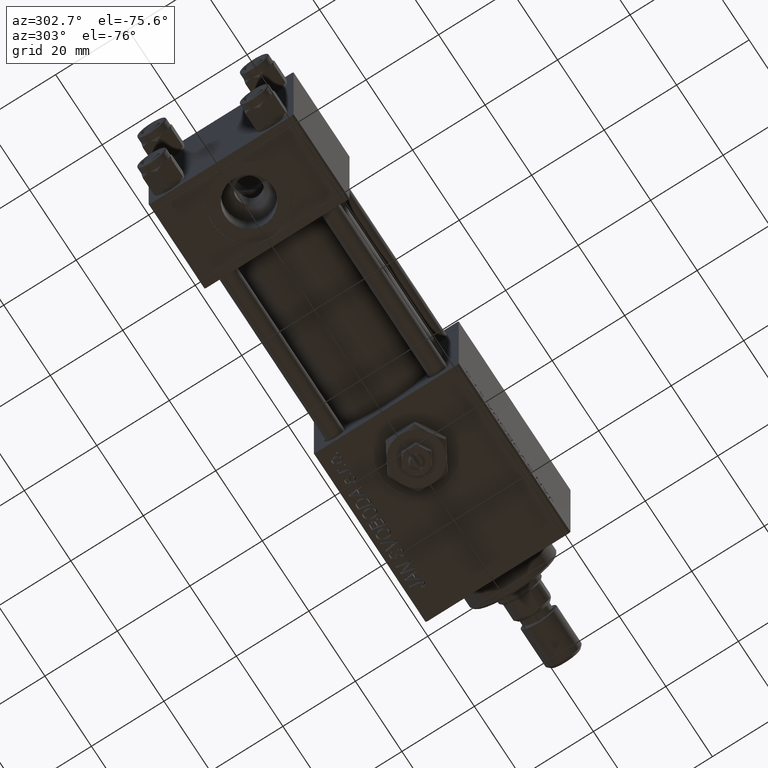
[diagram: clean part render]
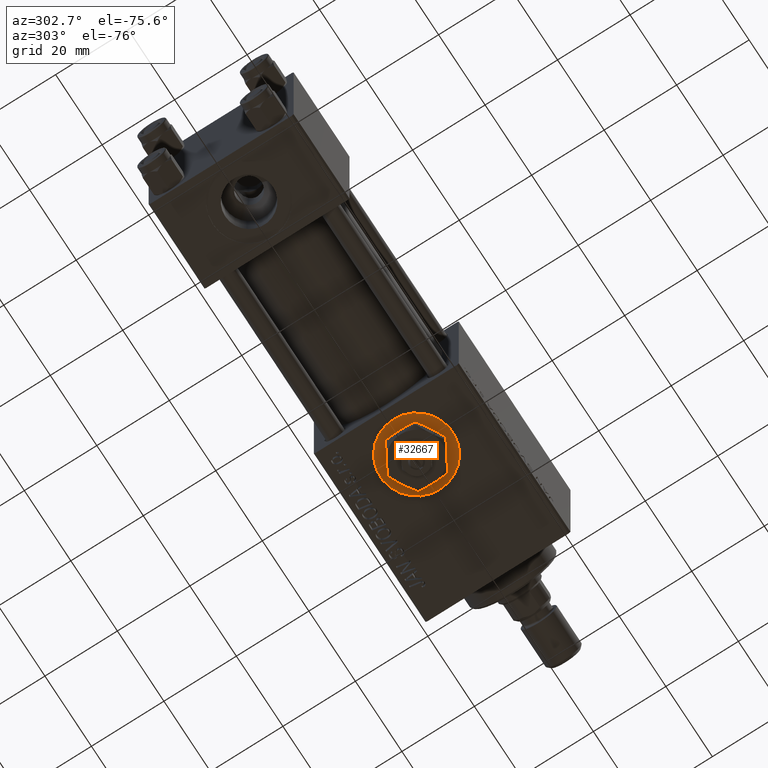
[diagram: same view with one face highlighted and labeled with its STEP entity id]
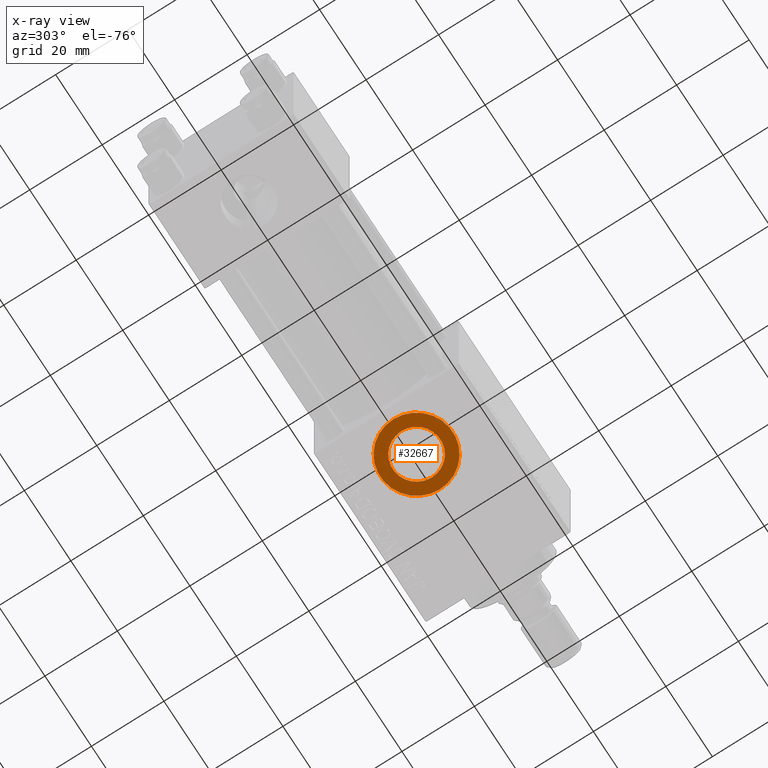
[diagram: x-ray of the same camera — body ghosted, the highlighted face saturated]
A machine part, auxiliary view. The second image highlights one B-rep face of the part: STEP entity #32667.
The next image is the same camera in x-ray: the body ghosted, the highlighted face saturated — about 0% of this face is hidden behind the body in this view.
In plain terms, the highlighted planar face has unit normal (0, 0, -1).
Its self-contained STEP definition (entity closure, byte-faithful):
#354 = AXIS2_PLACEMENT_3D ( 'NONE', #39909, #11976, #8241 ) ;
#1494 = CIRCLE ( 'NONE', #42270, 6.580000000000002736 ) ;
#2093 = CIRCLE ( 'NONE', #31793, 6.580000000000002736 ) ;
#4405 = ORIENTED_EDGE ( 'NONE', *, *, #37896, .F. ) ;
#7584 = EDGE_CURVE ( 'NONE', #38022, #51943, #24298, .T. ) ;
#7976 = FACE_BOUND ( 'NONE', #23536, .T. ) ;
#8241 = DIRECTION ( 'NONE',  ( -1.000000000000000000, 0.000000000000000000, -0.000000000000000000 ) ) ;
#11976 = DIRECTION ( 'NONE',  ( 0.000000000000000000, 0.000000000000000000, -1.000000000000000000 ) ) ;
#12002 = DIRECTION ( 'NONE',  ( 0.000000000000000000, 0.000000000000000000, -1.000000000000000000 ) ) ;
#13202 = CARTESIAN_POINT ( 'NONE',  ( 90.58000000000001251, 8.058175938389587461E-16, -19.80000000000000071 ) ) ;
#18675 = AXIS2_PLACEMENT_3D ( 'NONE', #43510, #30982, #38726 ) ;
#19703 = CARTESIAN_POINT ( 'NONE',  ( 74.00000000000000000, 0.000000000000000000, -19.80000000000000071 ) ) ;
#19807 = EDGE_CURVE ( 'NONE', #51943, #38022, #20375, .T. ) ;
#20007 = EDGE_LOOP ( 'NONE', ( #32701, #50021 ) ) ;
#20375 = CIRCLE ( 'NONE', #18675, 10.00000000000000888 ) ;
#21718 = CARTESIAN_POINT ( 'NONE',  ( 77.42000000000000171, 0.000000000000000000, -19.80000000000000071 ) ) ;
#22003 = CARTESIAN_POINT ( 'NONE',  ( 84.00000000000000000, 0.000000000000000000, -19.80000000000000071 ) ) ;
#23415 = DIRECTION ( 'NONE',  ( -1.000000000000000000, 0.000000000000000000, 0.000000000000000000 ) ) ;
#23536 = EDGE_LOOP ( 'NONE', ( #4405, #37108 ) ) ;
#24298 = CIRCLE ( 'NONE', #51507, 10.00000000000000888 ) ;
#28341 = CARTESIAN_POINT ( 'NONE',  ( 94.00000000000001421, 1.224646799147354440E-15, -19.80000000000000071 ) ) ;
#30623 = DIRECTION ( 'NONE',  ( 0.000000000000000000, 0.000000000000000000, -1.000000000000000000 ) ) ;
#30982 = DIRECTION ( 'NONE',  ( 0.000000000000000000, 0.000000000000000000, -1.000000000000000000 ) ) ;
#31793 = AXIS2_PLACEMENT_3D ( 'NONE', #52436, #12002, #23415 ) ;
#32667 = ADVANCED_FACE ( 'NONE', ( #7976, #47888 ), #39629, .T. ) ;
#32701 = ORIENTED_EDGE ( 'NONE', *, *, #7584, .T. ) ;
#34822 = VERTEX_POINT ( 'NONE', #21718 ) ;
#35688 = CARTESIAN_POINT ( 'NONE',  ( 84.00000000000000000, 0.000000000000000000, -19.80000000000000071 ) ) ;
#37108 = ORIENTED_EDGE ( 'NONE', *, *, #52385, .F. ) ;
#37896 = EDGE_CURVE ( 'NONE', #34822, #48322, #2093, .T. ) ;
#38022 = VERTEX_POINT ( 'NONE', #19703 ) ;
#38726 = DIRECTION ( 'NONE',  ( -1.000000000000000000, 0.000000000000000000, 0.000000000000000000 ) ) ;
#39629 = PLANE ( 'NONE',  #354 ) ;
#39909 = CARTESIAN_POINT ( 'NONE',  ( 84.00000000000000000, 0.000000000000000000, -19.80000000000000071 ) ) ;
#42270 = AXIS2_PLACEMENT_3D ( 'NONE', #35688, #30623, #51914 ) ;
#43510 = CARTESIAN_POINT ( 'NONE',  ( 84.00000000000000000, 0.000000000000000000, -19.80000000000000071 ) ) ;
#46231 = DIRECTION ( 'NONE',  ( -1.000000000000000000, 0.000000000000000000, 0.000000000000000000 ) ) ;
#47016 = DIRECTION ( 'NONE',  ( 0.000000000000000000, 0.000000000000000000, -1.000000000000000000 ) ) ;
#47888 = FACE_OUTER_BOUND ( 'NONE', #20007, .T. ) ;
#48322 = VERTEX_POINT ( 'NONE', #13202 ) ;
#50021 = ORIENTED_EDGE ( 'NONE', *, *, #19807, .T. ) ;
#51507 = AXIS2_PLACEMENT_3D ( 'NONE', #22003, #47016, #46231 ) ;
#51914 = DIRECTION ( 'NONE',  ( -1.000000000000000000, 0.000000000000000000, 0.000000000000000000 ) ) ;
#51943 = VERTEX_POINT ( 'NONE', #28341 ) ;
#52385 = EDGE_CURVE ( 'NONE', #48322, #34822, #1494, .T. ) ;
#52436 = CARTESIAN_POINT ( 'NONE',  ( 84.00000000000000000, 0.000000000000000000, -19.80000000000000071 ) ) ;